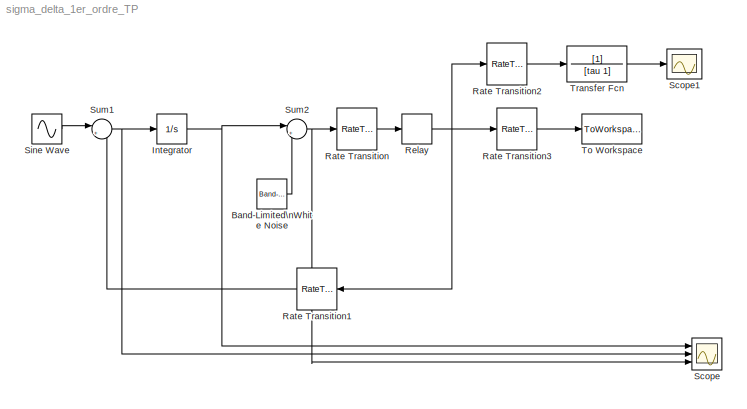
MODEL sigma_delta_1er_ordre_TP
KIND model
BLOCK [Reference] Band-Limited\nWhite Noise  REF=simulink/Sources/Band-Limited\nWhite Noise
  Cov = [noise_laplace]
  Ports = [0, 1]
  ShowPortLabels = on
  SourceBlock = simulink/Sources/Band-Limited\nWhite Noise
  SourceType = Band-Limited White Noise.
  Ts = ts
  VectorParams1D = on
  seed = [23341]
BLOCK [Integrator] Integrator
  IgnoreLimit = off
  Ports = [1, 1]
BLOCK [RateTransition] Rate Transition
BLOCK [RateTransition] Rate Transition1
BLOCK [RateTransition] Rate Transition2
BLOCK [RateTransition] Rate Transition3
BLOCK [Relay] Relay
  OffOutputValue = -1
  OffSwitchValue = 0
  OnSwitchValue = 0
  SampleTime = 1/fck
BLOCK [Scope] Scope
  DataFormat = StructureWithTime
  LimitDataPoints = off
  NumInputPorts = 3
  Ports = [3]
  YMax = 0.0002~1~0.00025
  YMin = -0.0002~-1~-0.00025
  ZoomMode = xonly
BLOCK [Scope] Scope1
  DataFormat = StructureWithTime
  LimitDataPoints = off
  NumInputPorts = 1
  Ports = [1]
  SaveName = ScopeData1
  YMax = 1
  YMin = -1
  ZoomMode = xonly
BLOCK [Sin] Sine Wave
  Amplitude = 0.5
  Frequency = 2*pi*250
  Ports = [0, 1]
  SampleTime = ts
  SineType = Time based
BLOCK [Sum] Sum1
  IconShape = round
  InputSameDT = off
  Inputs = |+-
  OutDataTypeMode = Inherit via internal rule
  Ports = [2, 1]
  SaturateOnIntegerOverflow = off
BLOCK [Sum] Sum2
  IconShape = round
  InputSameDT = off
  Inputs = |++
  OutDataTypeMode = Inherit via internal rule
  Ports = [2, 1]
  SaturateOnIntegerOverflow = off
BLOCK [ToWorkspace] To Workspace
  MaxDataPoints = fck
  SampleTime = ts
  SaveFormat = Array
  VariableName = simout
BLOCK [TransferFcn] Transfer Fcn
  Denominator = [tau 1]
LINE Band-Limited\nWhite Noise:1 -> Sum2:2
NET Integrator:1 -> Scope:1, Sum2:1
LINE Rate Transition1:1 -> Sum1:2
LINE Rate Transition2:1 -> Transfer Fcn:1
LINE Rate Transition3:1 -> To Workspace:1
LINE Rate Transition:1 -> Relay:1
NET Relay:1 -> Rate Transition1:1, Rate Transition2:1, Rate Transition3:1
LINE Sine Wave:1 -> Sum1:1
NET Sum1:1 -> Integrator:1, Scope:2
NET Sum2:1 -> Rate Transition:1, Scope:3
LINE Transfer Fcn:1 -> Scope1:1
note: NET lines group one-source signal fan-out (src -> all destinations, sorted); 1:1 wires keep LINE
